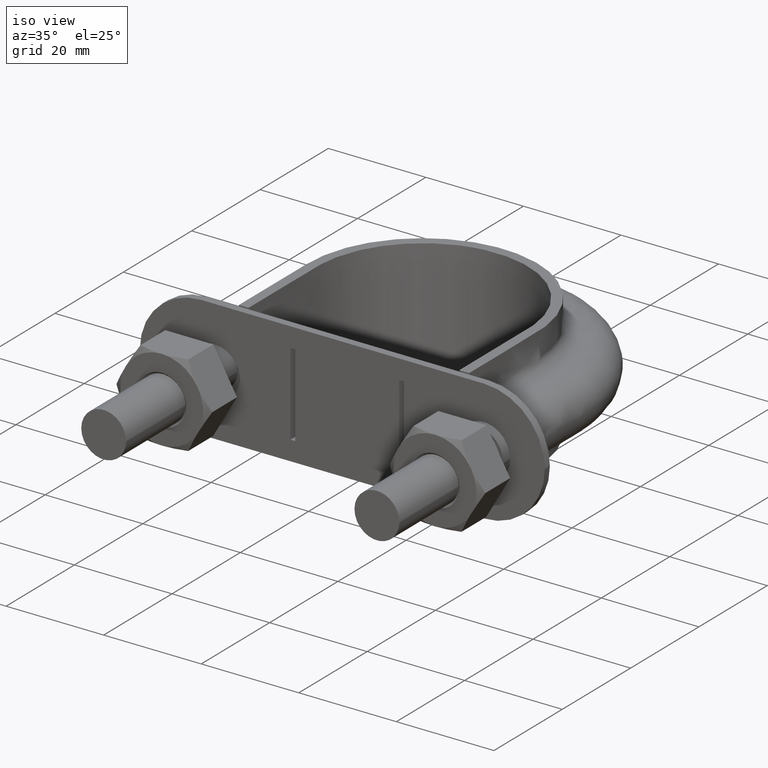
[diagram: clean part render]
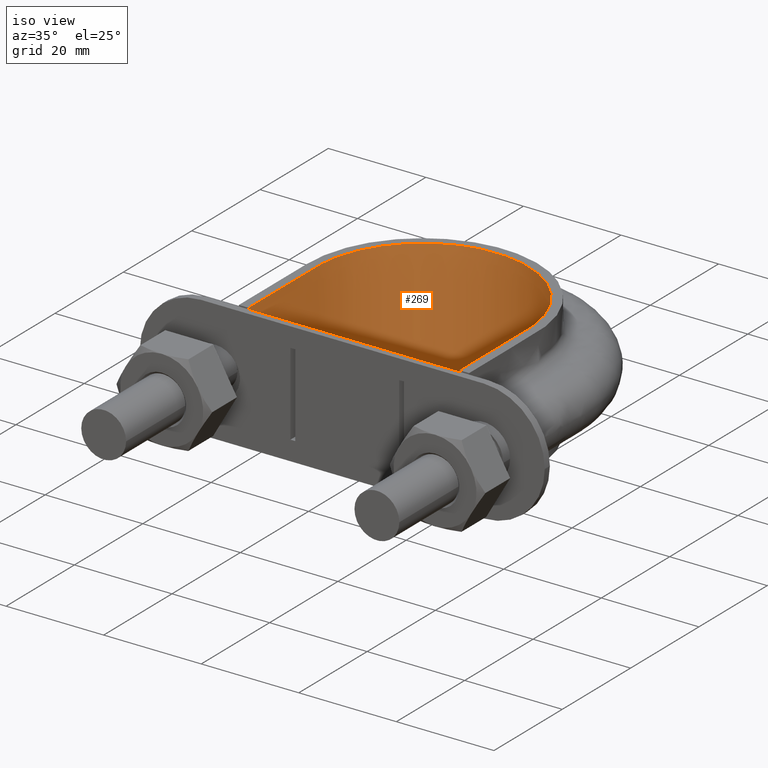
[diagram: same view with one face highlighted and labeled with its STEP entity id]
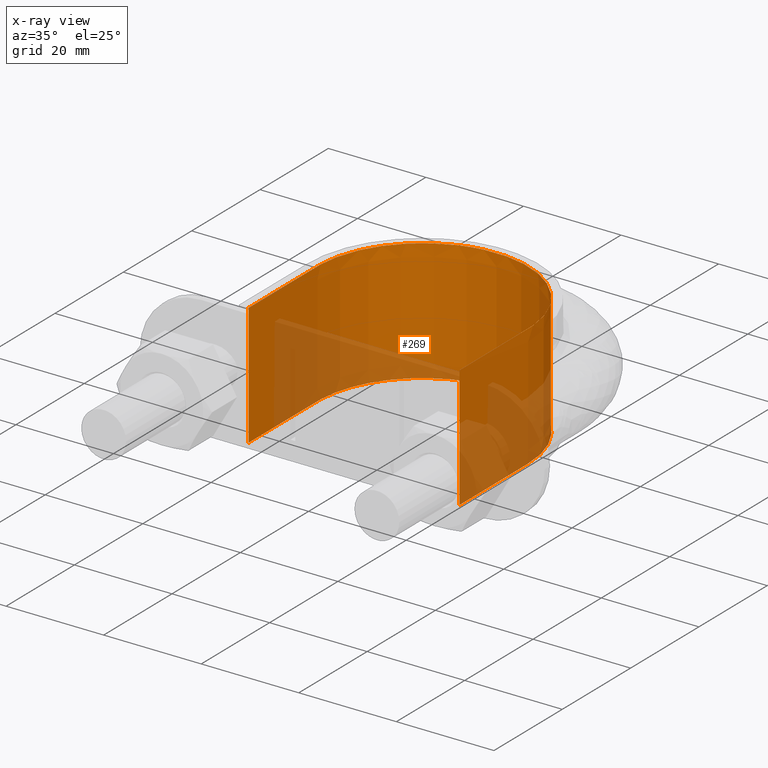
[diagram: x-ray of the same camera — body ghosted, the highlighted face saturated]
A machine part, iso view. The second image highlights one B-rep face of the part: STEP entity #269.
The next image is the same camera in x-ray: the body ghosted, the highlighted face saturated — about 32% of this face is hidden behind the body in this view.
In plain terms, the highlighted face is a SurfaceOfExtrusion surface.
Its self-contained STEP definition (entity closure, byte-faithful):
#269 = ADVANCED_FACE( '', ( #387 ), #388, .T. );
#387 = FACE_OUTER_BOUND( '', #644, .T. );
#388 = SURFACE_OF_LINEAR_EXTRUSION( '', #645, #646 );
#644 = EDGE_LOOP( '', ( #1736, #1737, #1738, #1739 ) );
#645 = B_SPLINE_CURVE_WITH_KNOTS( '', 3, ( #1740, #1741, #1742, #1743, #1744, #1745, #1746, #1747, #1748, #1749, #1750, #1751, #1752, #1753, #1754, #1755, #1756 ), .UNSPECIFIED., .F., .F., ( 4, 3, 1, 1, 1, 1, 1, 1, 1, 3, 4 ), ( -7.87012987012987, -7.00000000000000, -6.50000000000000, -6.00000000000000, -5.00000000000000, -4.00000000000000, -3.00000000000000, -2.00000000000000, -1.50000000000000, -1.00000000000000, -0.129870129870130 ), .UNSPECIFIED. );
#646 = VECTOR( '', #1757, 1000.00000000000 );
#1736 = ORIENTED_EDGE( '', *, *, #2546, .T. );
#1737 = ORIENTED_EDGE( '', *, *, #2555, .T. );
#1738 = ORIENTED_EDGE( '', *, *, #2552, .F. );
#1739 = ORIENTED_EDGE( '', *, *, #2556, .T. );
#1740 = CARTESIAN_POINT( '', ( 21.6000000000000, 33.3000000000000, 12.5000100000909 ) );
#1741 = CARTESIAN_POINT( '', ( 21.6000000000000, 40.0000000000000, 12.5000100000909 ) );
#1742 = CARTESIAN_POINT( '', ( 21.6000000000000, 46.7000000000000, 12.5000100000909 ) );
#1743 = CARTESIAN_POINT( '', ( 21.6000000000000, 53.4000000000000, 12.5000100000909 ) );
#1744 = CARTESIAN_POINT( '', ( 21.6000000000000, 55.2707818787651, 12.5000100000909 ) );
#1745 = CARTESIAN_POINT( '', ( 21.0928042095142, 59.0578434494473, 12.5000100000909 ) );
#1746 = CARTESIAN_POINT( '', ( 18.2026423381404, 66.0810066931108, 12.5000100000909 ) );
#1747 = CARTESIAN_POINT( '', ( 11.3044287353241, 72.9817225147667, 12.5000100000909 ) );
#1748 = CARTESIAN_POINT( '', ( 1.62470213291847E-014, 76.0091387426166, 12.5000100000909 ) );
#1749 = CARTESIAN_POINT( '', ( -11.3044287353241, 72.9817225147668, 12.5000100000909 ) );
#1750 = CARTESIAN_POINT( '', ( -18.2026423381403, 66.0810066931107, 12.5000100000909 ) );
#1751 = CARTESIAN_POINT( '', ( -21.0928042095142, 59.0578434494473, 12.5000100000909 ) );
#1752 = CARTESIAN_POINT( '', ( -21.6000000000000, 55.2707818787651, 12.5000100000909 ) );
#1753 = CARTESIAN_POINT( '', ( -21.6000000000000, 53.4000000000000, 12.5000100000909 ) );
#1754 = CARTESIAN_POINT( '', ( -21.6000000000000, 46.7000000000000, 12.5000100000909 ) );
#1755 = CARTESIAN_POINT( '', ( -21.6000000000000, 40.0000000000000, 12.5000100000909 ) );
#1756 = CARTESIAN_POINT( '', ( -21.6000000000000, 33.3000000000000, 12.5000100000909 ) );
#1757 = DIRECTION( '', ( 0.000000000000000, 0.000000000000000, -1.00000000000000 ) );
#2546 = EDGE_CURVE( '', #2787, #2788, #2789, .T. );
#2552 = EDGE_CURVE( '', #2797, #2800, #2801, .T. );
#2555 = EDGE_CURVE( '', #2788, #2800, #2805, .F. );
#2556 = EDGE_CURVE( '', #2797, #2787, #2806, .T. );
#2787 = VERTEX_POINT( '', #3194 );
#2788 = VERTEX_POINT( '', #3195 );
#2789 = LINE( '', #3196, #3197 );
#2797 = VERTEX_POINT( '', #3246 );
#2800 = VERTEX_POINT( '', #3250 );
#2801 = LINE( '', #3251, #3252 );
#2805 = B_SPLINE_CURVE_WITH_KNOTS( '', 3, ( #3287, #3288, #3289, #3290, #3291, #3292, #3293, #3294, #3295, #3296, #3297, #3298, #3299, #3300, #3301, #3302, #3303 ), .UNSPECIFIED., .F., .F., ( 4, 3, 1, 1, 1, 1, 1, 1, 1, 3, 4 ), ( -7.87012987012987, -7.00000000000000, -6.50000000000000, -6.00000000000000, -5.00000000000000, -4.00000000000000, -3.00000000000000, -2.00000000000000, -1.50000000000000, -1.00000000000000, -0.129870129870130 ), .UNSPECIFIED. );
#2806 = B_SPLINE_CURVE_WITH_KNOTS( '', 3, ( #3304, #3305, #3306, #3307, #3308, #3309, #3310, #3311, #3312, #3313, #3314, #3315, #3316, #3317, #3318, #3319, #3320, #3321, #3322, #3323, #3324, #3325, #3326, #3327, #3328, #3329, #3330, #3331, #3332, #3333, #3334, #3335, #3336, #3337, #3338, #3339, #3340, #3341, #3342, #3343, #3344, #3345, #3346, #3347, #3348, #3349, #3350, #3351, #3352, #3353, #3354, #3355, #3356, #3357, #3358, #3359, #3360, #3361, #3362, #3363, #3364, #3365, #3366, #3367, #3368, #3369, #3370, #3371, #3372, #3373 ), .UNSPECIFIED., .F., .F., ( 4, 1, 1, 1, 2, 2, 2, 2, 2, 2, 2, 2, 2, 2, 2, 2, 2, 2, 2, 2, 2, 2, 2, 2, 2, 2, 2, 2, 2, 2, 2, 2, 2, 2, 1, 1, 1, 4 ), ( 0.000000000000000, 0.0135231659011119, 0.0169039573763899, 0.0185943531140289, 0.0194395509828484, 0.0202847488516679, 0.0219751445893069, 0.0236655403269458, 0.0270463318022238, 0.0287367275398627, 0.0304271232775017, 0.0338079147527796, 0.0371887062280575, 0.0405694977033354, 0.0439502891786132, 0.0456406849162522, 0.0473310806538911, 0.0507118721291690, 0.0524022678668080, 0.0540926636044469, 0.0574734550797248, 0.0591638508173638, 0.0608542465550027, 0.0642350380302806, 0.0659254337679196, 0.0676158295055585, 0.0709966209808364, 0.0726870167184754, 0.0743774124561143, 0.0777582039313923, 0.0811389954066703, 0.0845197868819482, 0.0879005783572262, 0.0887457762260457, 0.0895909740948652, 0.0912813698325042, 0.0946621613077822, 0.108185327208894 ), .UNSPECIFIED. );
#3194 = CARTESIAN_POINT( '', ( -21.6000000000000, 33.3000000000000, 12.5000000000000 ) );
#3195 = CARTESIAN_POINT( '', ( -21.6000000000000, 33.3000000000000, -12.5000000000000 ) );
#3196 = CARTESIAN_POINT( '', ( -21.6000000000000, 33.3000000000000, 12.5000100000909 ) );
#3197 = VECTOR( '', #4068, 1000.00000000000 );
#3246 = CARTESIAN_POINT( '', ( 21.6000000000000, 33.3000000000000, 12.5000000000000 ) );
#3250 = CARTESIAN_POINT( '', ( 21.6000000000000, 33.3000000000000, -12.5000000000000 ) );
#3251 = CARTESIAN_POINT( '', ( 21.6000000000000, 33.3000000000000, 12.5000100000909 ) );
#3252 = VECTOR( '', #4072, 1000.00000000000 );
#3287 = CARTESIAN_POINT( '', ( 21.6000000000000, 33.3000000000000, -12.5000000000000 ) );
#3288 = CARTESIAN_POINT( '', ( 21.6000000000000, 40.0000000000000, -12.5000000000000 ) );
#3289 = CARTESIAN_POINT( '', ( 21.6000000000000, 46.7000000000000, -12.5000000000000 ) );
#3290 = CARTESIAN_POINT( '', ( 21.6000000000000, 53.4000000000000, -12.5000000000000 ) );
#3291 = CARTESIAN_POINT( '', ( 21.6000000000000, 55.2707818787651, -12.5000000000000 ) );
#3292 = CARTESIAN_POINT( '', ( 21.0928042095142, 59.0578434494473, -12.5000000000000 ) );
#3293 = CARTESIAN_POINT( '', ( 18.2026423381404, 66.0810066931108, -12.5000000000000 ) );
#3294 = CARTESIAN_POINT( '', ( 11.3044287353241, 72.9817225147667, -12.5000000000000 ) );
#3295 = CARTESIAN_POINT( '', ( 1.62470213291847E-014, 76.0091387426166, -12.5000000000000 ) );
#3296 = CARTESIAN_POINT( '', ( -11.3044287353241, 72.9817225147668, -12.5000000000000 ) );
#3297 = CARTESIAN_POINT( '', ( -18.2026423381403, 66.0810066931107, -12.5000000000000 ) );
#3298 = CARTESIAN_POINT( '', ( -21.0928042095142, 59.0578434494473, -12.5000000000000 ) );
#3299 = CARTESIAN_POINT( '', ( -21.6000000000000, 55.2707818787651, -12.5000000000000 ) );
#3300 = CARTESIAN_POINT( '', ( -21.6000000000000, 53.4000000000000, -12.5000000000000 ) );
#3301 = CARTESIAN_POINT( '', ( -21.6000000000000, 46.7000000000000, -12.5000000000000 ) );
#3302 = CARTESIAN_POINT( '', ( -21.6000000000000, 40.0000000000000, -12.5000000000000 ) );
#3303 = CARTESIAN_POINT( '', ( -21.6000000000000, 33.3000000000000, -12.5000000000000 ) );
#3304 = CARTESIAN_POINT( '', ( 21.6000000000000, 33.3000000000000, 12.5000000000000 ) );
#3305 = CARTESIAN_POINT( '', ( 21.6000000000000, 37.8078030796335, 12.5000000000000 ) );
#3306 = CARTESIAN_POINT( '', ( 21.6000000000000, 43.4425569291754, 12.5000000000000 ) );
#3307 = CARTESIAN_POINT( '', ( 21.6000000000000, 49.6407861636716, 12.5000000000000 ) );
#3308 = CARTESIAN_POINT( '', ( 21.6000000000000, 51.6129500110112, 12.5000000000000 ) );
#3309 = CARTESIAN_POINT( '', ( 21.6000000000000, 52.4581630884425, 12.5000000000000 ) );
#3310 = CARTESIAN_POINT( '', ( 21.6000000000000, 53.0216384733967, 12.5000000000000 ) );
#3311 = CARTESIAN_POINT( '', ( 21.6016868866855, 53.3033862855928, 12.5000000000000 ) );
#3312 = CARTESIAN_POINT( '', ( 21.5941473148947, 54.1485541327496, 12.5000000000000 ) );
#3313 = CARTESIAN_POINT( '', ( 21.5662932291955, 54.7118624196277, 12.5000000000000 ) );
#3314 = CARTESIAN_POINT( '', ( 21.4660466240226, 55.8382118050554, 12.5000000000000 ) );
#3315 = CARTESIAN_POINT( '', ( 21.3934997931487, 56.4007781127302, 12.5000000000000 ) );
#3316 = CARTESIAN_POINT( '', ( 21.1137244660228, 58.0644770260068, 12.5000000000000 ) );
#3317 = CARTESIAN_POINT( '', ( 20.8443432397078, 59.1498681355507, 12.5000000000000 ) );
#3318 = CARTESIAN_POINT( '', ( 20.3169229678079, 60.7426141857047, 12.5000000000000 ) );
#3319 = CARTESIAN_POINT( '', ( 20.1204432841999, 61.2676065264572, 12.5000000000000 ) );
#3320 = CARTESIAN_POINT( '', ( 19.6849320818904, 62.3053996627897, 12.5000000000000 ) );
#3321 = CARTESIAN_POINT( '', ( 19.4446614349743, 62.8204297573999, 12.5000000000000 ) );
#3322 = CARTESIAN_POINT( '', ( 18.6684950229906, 64.3244383250886, 12.5000000000000 ) );
#3323 = CARTESIAN_POINT( '', ( 18.0769270085057, 65.2744513721938, 12.5000000000000 ) );
#3324 = CARTESIAN_POINT( '', ( 16.7529195258009, 67.0743989142740, 12.5000000000000 ) );
#3325 = CARTESIAN_POINT( '', ( 16.0200911873579, 67.9252873863386, 12.5000000000000 ) );
#3326 = CARTESIAN_POINT( '', ( 14.4128259168033, 69.5214747358976, 12.5000000000000 ) );
#3327 = CARTESIAN_POINT( '', ( 13.5580348793817, 70.2474792809738, 12.5000000000000 ) );
#3328 = CARTESIAN_POINT( '', ( 11.7487973458944, 71.5590603088197, 12.5000000000000 ) );
#3329 = CARTESIAN_POINT( '', ( 10.7940352803573, 72.1441921113883, 12.5000000000000 ) );
#3330 = CARTESIAN_POINT( '', ( 9.28291683850488, 72.9106028409483, 12.5000000000000 ) );
#3331 = CARTESIAN_POINT( '', ( 8.76688933898166, 73.1469814262959, 12.5000000000000 ) );
#3332 = CARTESIAN_POINT( '', ( 7.72704803755933, 73.5751653360497, 12.5000000000000 ) );
#3333 = CARTESIAN_POINT( '', ( 7.20104342927320, 73.7681270441960, 12.5000000000000 ) );
#3334 = CARTESIAN_POINT( '', ( 5.60522003708376, 74.2851576032092, 12.5000000000000 ) );
#3335 = CARTESIAN_POINT( '', ( 4.51773658274790, 74.5478751313466, 12.5000000000000 ) );
#3336 = CARTESIAN_POINT( '', ( 2.85023521541972, 74.8159602825123, 12.5000000000000 ) );
#3337 = CARTESIAN_POINT( '', ( 2.28591125961182, 74.8842927632193, 12.5000000000000 ) );
#3338 = CARTESIAN_POINT( '', ( 1.16191586217198, 74.9755534961754, 12.5000000000000 ) );
#3339 = CARTESIAN_POINT( '', ( 0.601211685233156, 74.9988511425481, 12.5000000000000 ) );
#3340 = CARTESIAN_POINT( '', ( -1.07704505152024, 75.0021735987778, 12.5000000000000 ) );
#3341 = CARTESIAN_POINT( '', ( -2.19076731773874, 74.9160681926210, 12.5000000000000 ) );
#3342 = CARTESIAN_POINT( '', ( -3.85383561017253, 74.6571613761924, 12.5000000000000 ) );
#3343 = CARTESIAN_POINT( '', ( -4.40765029596283, 74.5489362348310, 12.5000000000000 ) );
#3344 = CARTESIAN_POINT( '', ( -5.50969437777180, 74.2885553897380, 12.5000000000000 ) );
#3345 = CARTESIAN_POINT( '', ( -6.05215769470158, 74.1378230506362, 12.5000000000000 ) );
#3346 = CARTESIAN_POINT( '', ( -7.65458034955575, 73.6257016671256, 12.5000000000000 ) );
#3347 = CARTESIAN_POINT( '', ( -8.68976887568341, 73.2048598409189, 12.5000000000000 ) );
#3348 = CARTESIAN_POINT( '', ( -10.1920361507629, 72.4523540893674, 12.5000000000000 ) );
#3349 = CARTESIAN_POINT( '', ( -10.6843068104453, 72.1811536314305, 12.5000000000000 ) );
#3350 = CARTESIAN_POINT( '', ( -11.6512116265084, 71.5964230902266, 12.5000000000000 ) );
#3351 = CARTESIAN_POINT( '', ( -12.1245518901083, 71.2835606581346, 12.5000000000000 ) );
#3352 = CARTESIAN_POINT( '', ( -13.4940506802498, 70.2993829505195, 12.5000000000000 ) );
#3353 = CARTESIAN_POINT( '', ( -14.3483977984834, 69.5779831351971, 12.5000000000000 ) );
#3354 = CARTESIAN_POINT( '', ( -15.5445244245929, 68.4008375271323, 12.5000000000000 ) );
#3355 = CARTESIAN_POINT( '', ( -15.9289126706020, 67.9925164105730, 12.5000000000000 ) );
#3356 = CARTESIAN_POINT( '', ( -16.6684043052147, 67.1432793403302, 12.5000000000000 ) );
#3357 = CARTESIAN_POINT( '', ( -17.0248134305994, 66.7004293677336, 12.5000000000000 ) );
#3358 = CARTESIAN_POINT( '', ( -18.0326739447613, 65.3423149081644, 12.5000000000000 ) );
#3359 = CARTESIAN_POINT( '', ( -18.6267452534931, 64.3943045919171, 12.5000000000000 ) );
#3360 = CARTESIAN_POINT( '', ( -19.6599214235238, 62.4134684385161, 12.5000000000000 ) );
#3361 = CARTESIAN_POINT( '', ( -20.1004689641877, 61.3791428767158, 12.5000000000000 ) );
#3362 = CARTESIAN_POINT( '', ( -20.8221292198643, 59.2326486444712, 12.5000000000000 ) );
#3363 = CARTESIAN_POINT( '', ( -21.0954136423922, 58.1448754351828, 12.5000000000000 ) );
#3364 = CARTESIAN_POINT( '', ( -21.4751329492846, 55.9416443697406, 12.5000000000000 ) );
#3365 = CARTESIAN_POINT( '', ( -21.5818004860624, 54.8262251166299, 12.5000000000000 ) );
#3366 = CARTESIAN_POINT( '', ( -21.6019152180314, 53.4131649802125, 12.5000000000000 ) );
#3367 = CARTESIAN_POINT( '', ( -21.6000000000000, 53.1295676581122, 12.5000000000000 ) );
#3368 = CARTESIAN_POINT( '', ( -21.6000000000000, 52.5630085821662, 12.5000000000000 ) );
#3369 = CARTESIAN_POINT( '', ( -21.6000000000000, 51.7131699682471, 12.5000000000000 ) );
#3370 = CARTESIAN_POINT( '', ( -21.6000000000000, 49.7302132024358, 12.5000000000000 ) );
#3371 = CARTESIAN_POINT( '', ( -21.6000000000000, 43.4980633670292, 12.5000000000000 ) );
#3372 = CARTESIAN_POINT( '', ( -21.6000000000000, 37.8324726075685, 12.5000000000000 ) );
#3373 = CARTESIAN_POINT( '', ( -21.6000000000000, 33.3000000000000, 12.5000000000000 ) );
#4068 = DIRECTION( '', ( 0.000000000000000, 0.000000000000000, -1.00000000000000 ) );
#4072 = DIRECTION( '', ( 0.000000000000000, 0.000000000000000, -1.00000000000000 ) );